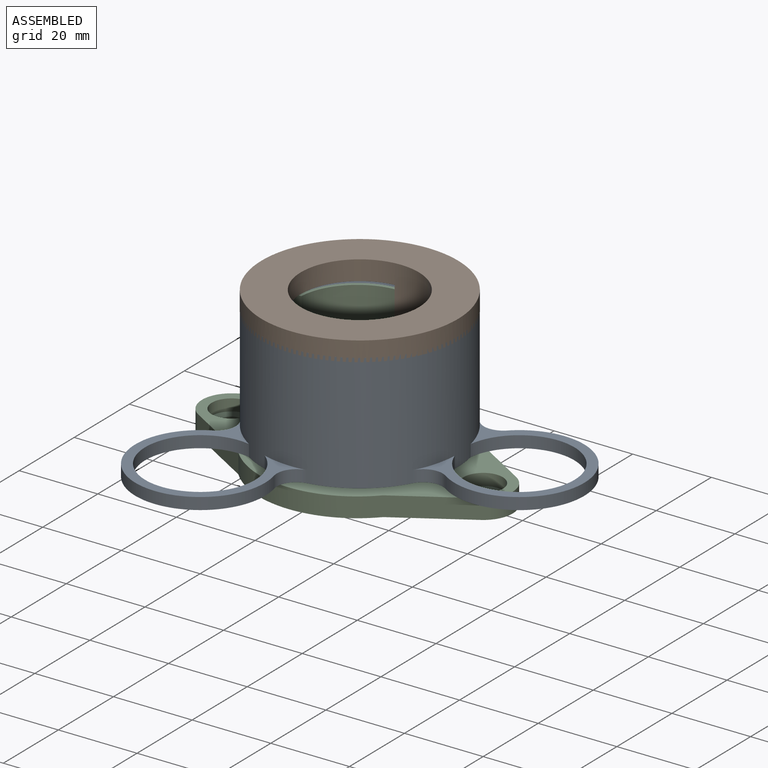
[diagram: assembled view]
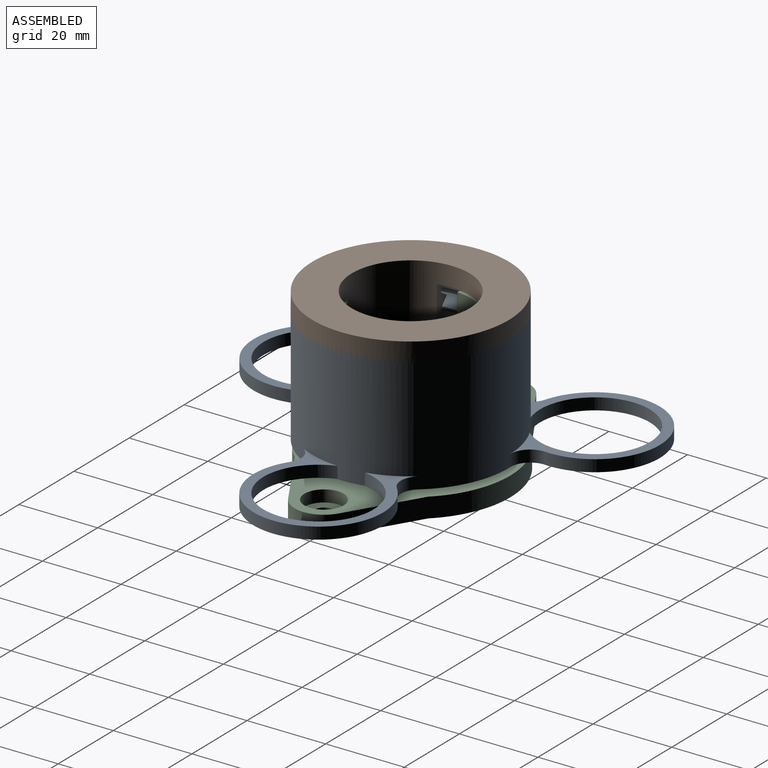
[diagram: assembled view, second angle]
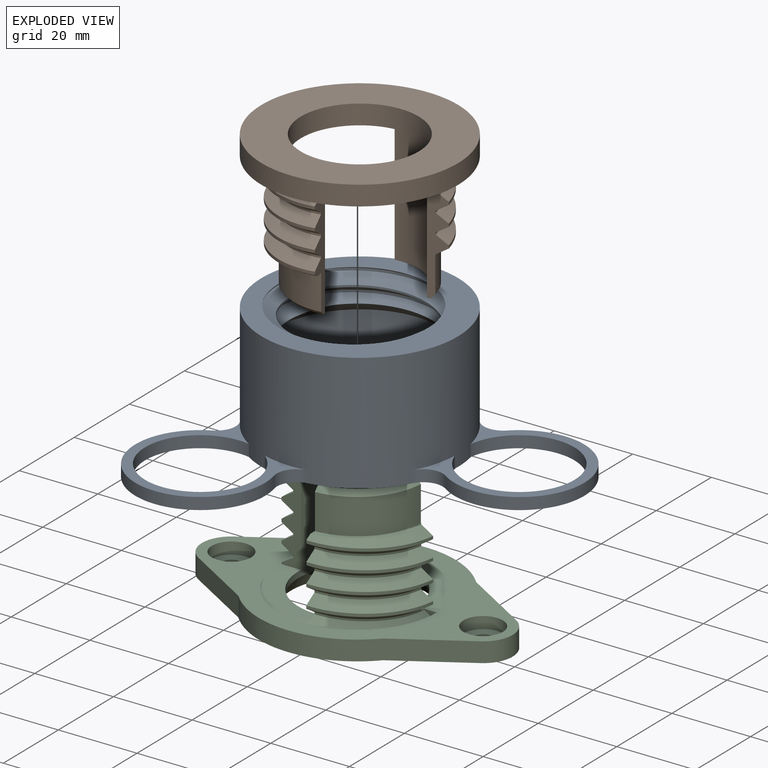
[diagram: exploded view]
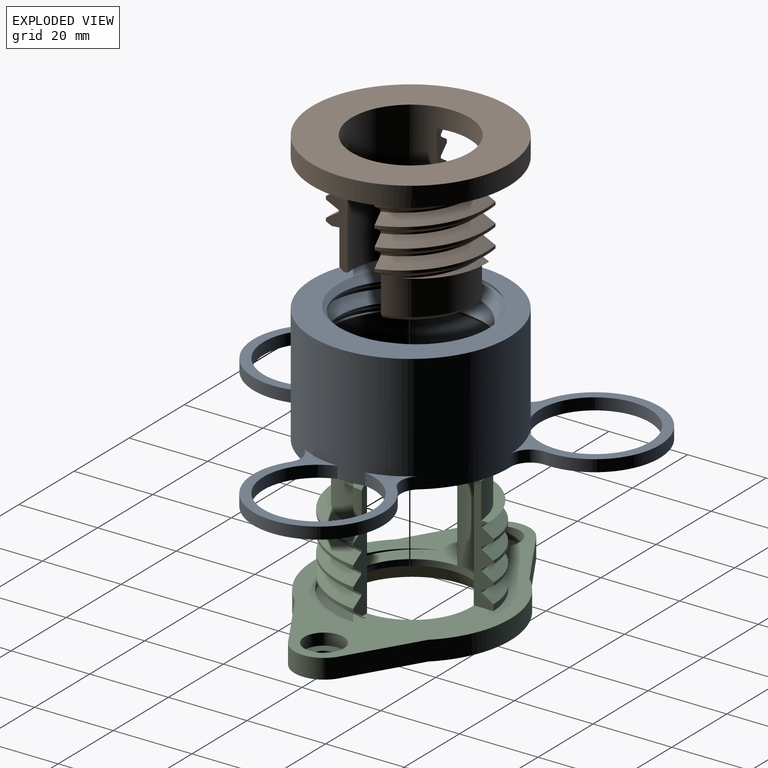
[diagram: exploded view, second angle]
FCSTD DOCUMENT  (FreeCAD 2020.11.29R23076 +2859 (Git))
Label: regulacja-nogi
License: All rights reserved
LicenseURL: http://en.wikipedia.org/wiki/All_rights_reserved
objects: App::FeaturePython×13, Part::FeaturePython×11, App::Link×3
note: 10 computed .brp shape members not serialized (recipe doc carries the construction recipe); baked Part::Feature solids carry a one-line shape summary decoded from their .brp
EXTERNAL_REF file=nakretka-rzymska.FCStd obj=Body
EXTERNAL_REF file=noga-gora.FCStd obj=Body
EXTERNAL_REF file=noga-dol.FCStd obj=Body

FEATURE [App::Link] Link  label="nakretka-rzymska"
  LinkPlacement = pos=(0.604474,0.0526819,2) rot=(0,0,1;0.086943rad)
  LinkedObject = -> <external nakretka-rzymska.FCStd>#Body
  Placement = pos=(0.604474,0.0526819,2) rot=(0,0,1;0.086943rad)
  SyncGroupVisibility = false
  _LinkVersion = 1
FEATURE [App::Link] Link001  label="noga-gora"
  LinkPlacement = pos=(0.604474,0.0526819,21) rot=(0,0,1;0.173886rad)
  LinkedObject = -> <external noga-gora.FCStd>#Body
  Placement = pos=(0.604474,0.0526819,21) rot=(0,0,1;0.173886rad)
  SyncGroupVisibility = false
  _LinkVersion = 1
FEATURE [App::Link] Link002  label="noga-dol"
  LinkPlacement = pos=(0,-5.76185e-06,-20) rot=(-1,0,0;3.14159rad)
  LinkedObject = -> <external noga-dol.FCStd>#Body
  Placement = pos=(0,-5.76185e-06,-20) rot=(-1,0,0;3.14159rad)
  SyncGroupVisibility = false
  _LinkVersion = 1
FEATURE [Part::FeaturePython] Parts  # WARN: FeaturePython — macro-defined, semantics opaque (R4)
  Group = -> [Link,Link001,Link002]
  GroupMode = 0
  _LinkVersion = 1
FEATURE [Part::FeaturePython] Assembly  label="regulacja-nogi"  # WARN: FeaturePython — macro-defined, semantics opaque (R4)
  AutoRelax = true
  BuildShape = 0
  Freeze = false
  Group = -> [Constraints,Elements,Parts]
  Verbose = false
  _LinkVersion = 1
  _SolverType = 1
  _Version = 1
FEATURE [App::FeaturePython] Constraints  # WARN: FeaturePython — macro-defined, semantics opaque (R4)
  Group = -> [Constraint,Constraint001,Constraint002,Constraint003]
  _LinkVersion = 1
  _Version = 1
FEATURE [App::FeaturePython] Elements  # WARN: FeaturePython — macro-defined, semantics opaque (R4)
  Group = -> [_Element,_Element001,_Element002,_Element003,_Element004,_Element005,Element,Element001,Element002]
  _LinkVersion = 1
FEATURE [App::FeaturePython] Constraint  label="Locked"  # WARN: FeaturePython — macro-defined, semantics opaque (R4)
  Disabled = false
  Group = -> [ElementLink]
  _ConstraintType = 0
  _LinkVersion = 0
  _Parent = -> Constraints
FEATURE [App::FeaturePython] ElementLink  label="_Element"  # link proxy (typed FeaturePython)
  LinkTransform = true
  LinkedObject = -> _Element
  _LinkVersion = 0
  _Parent = -> Constraint
FEATURE [Part::FeaturePython] _Element  # link proxy (typed FeaturePython)
  Detach = false
  LinkTransform = true
  LinkedObject = -> Link002 [Chamfer002.Face61]
  _LinkVersion = 0
  _Parent = -> Elements
FEATURE [App::FeaturePython] Constraint001  label="PlaneCoincident"  # WARN: FeaturePython — macro-defined, semantics opaque (R4)
  Angle = 0
  AnglePitch = 0
  AngleRoll = 0
  Cascade = false
  Disabled = false
  Group = -> [ElementLink001,ElementLink002]
  LockAngle = false
  Multiply = false
  Offset = -7
  OffsetX = 0
  OffsetY = 0
  _ConstraintType = 35
  _LinkVersion = 0
  _Parent = -> Constraints
FEATURE [App::FeaturePython] ElementLink001  label="_Element"  # link proxy (typed FeaturePython)
  LinkTransform = true
  LinkedObject = -> _Element
  _LinkVersion = 0
  _Parent = -> Constraint001
FEATURE [App::FeaturePython] ElementLink002  label="_Element001"  # link proxy (typed FeaturePython)
  LinkTransform = true
  LinkedObject = -> _Element001
  _LinkVersion = 0
  _Parent = -> Constraint001
FEATURE [Part::FeaturePython] _Element001  # link proxy (typed FeaturePython)
  Detach = false
  LinkTransform = true
  LinkedObject = -> Link [Fillet.Face2]
  _LinkVersion = 0
  _Parent = -> Elements
FEATURE [App::FeaturePython] Constraint002  label="PlaneCoincident001"  # WARN: FeaturePython — macro-defined, semantics opaque (R4)
  Angle = 0
  AnglePitch = 0
  AngleRoll = 0
  Cascade = false
  Disabled = false
  Group = -> [ElementLink003,ElementLink004]
  LockAngle = false
  Multiply = false
  Offset = 4
  OffsetX = 0
  OffsetY = 0
  _ConstraintType = 35
  _LinkVersion = 0
  _Parent = -> Constraints
FEATURE [App::FeaturePython] ElementLink003  label="_Element002"  # link proxy (typed FeaturePython)
  LinkTransform = true
  LinkedObject = -> _Element002
  _LinkVersion = 0
  _Parent = -> Constraint002
FEATURE [Part::FeaturePython] _Element002  # link proxy (typed FeaturePython)
  Detach = false
  LinkTransform = true
  LinkedObject = -> Link001 [Chamfer001.Face25]
  _LinkVersion = 0
  _Parent = -> Elements
FEATURE [App::FeaturePython] ElementLink004  label="_Element003"  # link proxy (typed FeaturePython)
  LinkTransform = true
  LinkedObject = -> _Element003
  _LinkVersion = 0
  _Parent = -> Constraint002
FEATURE [Part::FeaturePython] _Element003  # link proxy (typed FeaturePython)
  Detach = false
  LinkTransform = true
  LinkedObject = -> Link [Fillet.Face12]
  _LinkVersion = 0
  _Parent = -> Elements
FEATURE [App::FeaturePython] Constraint003  label="PointOnLine"  # WARN: FeaturePython — macro-defined, semantics opaque (R4)
  Disabled = false
  Group = -> [ElementLink005,ElementLink006]
  _ConstraintType = 4
  _LinkVersion = 0
  _Parent = -> Constraints
FEATURE [App::FeaturePython] ElementLink005  label="_Element004"  # link proxy (typed FeaturePython)
  LinkTransform = true
  LinkedObject = -> _Element004
  _LinkVersion = 0
  _Parent = -> Constraint003
FEATURE [Part::FeaturePython] _Element004  # link proxy (typed FeaturePython)
  Detach = false
  LinkTransform = true
  LinkedObject = -> Link001 [Chamfer001.Vertex29]
  _LinkVersion = 0
  _Parent = -> Elements
FEATURE [App::FeaturePython] ElementLink006  label="_Element005"  # link proxy (typed FeaturePython)
  LinkTransform = true
  LinkedObject = -> _Element005
  _LinkVersion = 0
  _Parent = -> Constraint003
FEATURE [Part::FeaturePython] _Element005  # link proxy (typed FeaturePython)
  Detach = false
  LinkTransform = true
  LinkedObject = -> Link002 [Chamfer002.Edge3]
  _LinkVersion = 0
  _Parent = -> Elements
FEATURE [Part::FeaturePython] Element  # link proxy (typed FeaturePython)
  Detach = false
  LinkTransform = true
  LinkedObject = -> Link002 [Chamfer002.Edge82]
  _LinkVersion = 0
  _Parent = -> Elements
FEATURE [Part::FeaturePython] Element001  # link proxy (typed FeaturePython)
  Detach = false
  LinkTransform = true
  LinkedObject = -> Link002 [Chamfer002.Vertex143]
  _LinkVersion = 0
  _Parent = -> Elements
FEATURE [Part::FeaturePython] Element002  # link proxy (typed FeaturePython)
  Detach = false
  LinkTransform = true
  LinkedObject = -> Link002 [Chamfer002.Face35]
  _LinkVersion = 0
  _Parent = -> Elements

RESOLVED EXTERNAL PARTS (link-assembly join: the EXTERNAL_REF files above that resolve inside this repo's crawl, each included once):
---- part nakretka-rzymska.FCStd = doc fcstd_4910834bdb62 ----
FCSTD DOCUMENT  (FreeCAD 2020.11.29R23076 +2859 (Git))
Label: nakretka-rzymska
License: All rights reserved
LicenseURL: http://en.wikipedia.org/wiki/All_rights_reserved
objects: Sketcher::SketchObject×4, PartDesign::Pad×2, Part::Helix×1, PartDesign::ShapeBinder×1, PartDesign::AdditivePipe×1, PartDesign::Mirrored×1, PartDesign::Groove×1, PartDesign::PolarPattern×1, PartDesign::Fillet×1, PartDesign::Body×1
note: 26 computed .brp shape members not serialized (recipe doc carries the construction recipe); baked Part::Feature solids carry a one-line shape summary decoded from their .brp

FEATURE [Sketcher::SketchObject] Sketch
  MapMode = 5
  Support = -> [XY_Plane]
  sketch-geometry (2):
    g0: Circle CenterX=0 CenterY=0 CenterZ=0 NormalX=0 NormalY=0 NormalZ=1 AngleXU=0 Radius=20.5
    g1: Circle CenterX=0 CenterY=0 CenterZ=0 NormalX=0 NormalY=0 NormalZ=1 AngleXU=0 Radius=25
  constraints (4):
    c: Coincident(g0,g-1)
    c: Diameter(g0) = 41
    c: Coincident(g1,g0)
    c: Diameter(g1) = 50
FEATURE [PartDesign::Pad] Pad
  ClaimChildren = false
  Direction = (1,1,1)
  Fit = 0
  FitJoin = 0
  InnerFit = 0
  InnerFitJoin = 0
  InnerTaperAngle = 0
  InnerTaperAngleRev = 0
  Length = 30
  Length2 = 100
  Midplane = true
  NewSolid = false
  Profile = -> Sketch
  Suppress = false
  Type = 0
FEATURE [Sketcher::SketchObject] Sketch001
  MapMode = 5
  Placement = pos=(0,0,0) rot=(1,0,0;1.5708rad)
  Support = -> [XZ_Plane]
  sketch-geometry (4):
    g0: LineSegment StartX=20.6 StartY=2.25 StartZ=0 EndX=20.6 EndY=-2.25 EndZ=0
    g1: LineSegment StartX=20.6 StartY=-2.25 StartZ=0 EndX=17.5 EndY=-0.25 EndZ=0
    g2: LineSegment StartX=17.5 StartY=-0.25 StartZ=0 EndX=17.5 EndY=0.25 EndZ=0
    g3: LineSegment StartX=17.5 StartY=0.25 StartZ=0 EndX=20.6 EndY=2.25 EndZ=0
  constraints (12):
    c: Vertical(g0)
    c: Coincident(g0,g1)
    c: Coincident(g1,g2)
    c: Coincident(g2,g3)
    c: Coincident(g3,g0)
    c: Vertical(g2)
    c: DistanceY(g2,g2) = 0.5
    c: DistanceY(g0,g0) = 4.5
    c: Equal(g1,g3)
    c: DistanceY(g-1,g2) = 0.25
    c: DistanceX(g0) = 20.6
    c: DistanceX(g1) = 17.5
FEATURE [Part::Helix] Helix  label="Helisa"
  Angle = 0
  AttacherType = Attacher::AttachEngine3D
  Height = 20
  LocalCoord = 0
  Pitch = 5
  Radius = 20.6
  Style = 1
FEATURE [PartDesign::ShapeBinder] ReferenceHelix
  Support = -> [Helix]
  TraceSupport = false
FEATURE [PartDesign::AdditivePipe] AdditivePipe
  AuxilleryCurvelinear = true
  AuxillerySpineTangent = false
  BaseFeature = -> Pad
  Binormal = (0,0,0)
  ClaimChildren = false
  Fit = 0
  FitJoin = 0
  InnerFit = 0
  InnerFitJoin = 0
  Mode = 2
  NewSolid = false
  Profile = -> Sketch001
  Spine = -> ReferenceHelix
  SpineTangent = false
  Suppress = false
  Transformation = 0
  Transition = 0
FEATURE [PartDesign::Mirrored] Mirrored
  BaseFeature = -> AdditivePipe
  CopyShape = false
  MirrorPlane = -> XY_Plane
  NewSolid = false
  OriginalSubs = -> [AdditivePipe]
  Originals = -> [AdditivePipe]
  SubTransform = true
  Suppress = false
FEATURE [Sketcher::SketchObject] Sketch002
  MapMode = 5
  Placement = pos=(0,0,0) rot=(0.57735,0.57735,0.57735;2.0944rad)
  Support = -> [YZ_Plane]
  sketch-geometry (14):
    g0: LineSegment StartX=0 StartY=15 StartZ=0 EndX=30 EndY=15 EndZ=0
    g1: LineSegment StartX=30 StartY=15 StartZ=0 EndX=30 EndY=25 EndZ=0
    g2: LineSegment StartX=30 StartY=25 StartZ=0 EndX=0 EndY=25 EndZ=0
    g3: LineSegment StartX=0 StartY=25 StartZ=0 EndX=0 EndY=15 EndZ=0
    g4: LineSegment StartX=0 StartY=-15 StartZ=0 EndX=30 EndY=-15 EndZ=0
    g5: LineSegment StartX=30 StartY=-15 StartZ=0 EndX=30 EndY=-25 EndZ=0
    g6: LineSegment StartX=30 StartY=-25 StartZ=0 EndX=0 EndY=-25 EndZ=0
    g7: LineSegment StartX=0 StartY=-25 StartZ=0 EndX=0 EndY=-15 EndZ=0
    g8: LineSegment StartX=0 StartY=7.5 StartZ=0 EndX=18 EndY=7.5 EndZ=0
    g9: LineSegment StartX=20.6 StartY=4.9 StartZ=0 EndX=20.6 EndY=-4.9 EndZ=0
    g10: LineSegment StartX=18 StartY=-7.5 StartZ=0 EndX=0 EndY=-7.5 EndZ=0
    g11: LineSegment StartX=0 StartY=-7.5 StartZ=0 EndX=0 EndY=7.5 EndZ=0
    g12: LineSegment StartX=18 StartY=7.5 StartZ=0 EndX=20.6 EndY=4.9 EndZ=0
    g13: LineSegment StartX=20.6 StartY=-4.9 StartZ=0 EndX=18 EndY=-7.5 EndZ=0
  constraints (40):
    c: Coincident(g0,g1)
    c: Coincident(g1,g2)
    c: Coincident(g2,g3)
    c: Coincident(g3,g0)
    c: Horizontal(g0)
    c: Horizontal(g2)
    c: Vertical(g1)
    c: Vertical(g3)
    c: PointOnObject(g0,g-2)
    c: Coincident(g4,g5)
    c: Coincident(g5,g6)
    c: Coincident(g6,g7)
    c: Coincident(g7,g4)
    c: Horizontal(g4)
    c: Horizontal(g6)
    c: Vertical(g5)
    c: Vertical(g7)
    c: Coincident(g10,g11)
    c: Coincident(g11,g8)
    c: Horizontal(g8)
    c: Horizontal(g10)
    c: Vertical(g9)
    c: PointOnObject(g8,g-2)
    c: Symmetric(g10,g8,g-1)
    c: Symmetric(g0,g4,g-1)
    c: Equal(g0,g4)
    c: Equal(g1,g5)
    c: DistanceX(g2,g2) = 30
    c: DistanceY(g1,g1) = 10
    c: DistanceY(g4) = -15
    c: Coincident(g10,g13)
    c: Coincident(g9,g13)
    c: Coincident(g9,g12)
    c: Coincident(g8,g12)
    c: Angle(g8,g12) = 2.35619
    c: Angle(g13,g10) = 2.35619
    c: DistanceX(g9) = 20.6
    c: DistanceX(g10) = 18
    c: DistanceY(g11,g11) = 15
    c: Equal(g12,g13)
FEATURE [PartDesign::Groove] Groove
  Angle = 360
  Axis = (-2e-16,3e-16,1)
  Base = (0,0,0)
  BaseFeature = -> Mirrored
  ClaimChildren = false
  Fit = 0
  FitJoin = 0
  InnerFit = 0
  InnerFitJoin = 0
  NewSolid = false
  Profile = -> Sketch002
  ReferenceAxis = -> Sketch002 [V_Axis]
  Suppress = false
FEATURE [Sketcher::SketchObject] Sketch003
  MapMode = 5
  Placement = pos=(0,0,-15) rot=(1,0,0;3.14159rad)
  Support = -> [Groove]
  sketch-geometry (2):
    g0: Circle CenterX=38.3826 CenterY=0 CenterZ=0 NormalX=0 NormalY=0 NormalZ=1 AngleXU=0 Radius=16.5
    g1: Circle CenterX=38.3826 CenterY=0 CenterZ=0 NormalX=0 NormalY=0 NormalZ=1 AngleXU=0 Radius=14
  constraints (4):
    c: PointOnObject(g0,g-1)
    c: Coincident(g1,g0)
    c: Diameter(g0) = 33
    c: Diameter(g1) = 28
FEATURE [PartDesign::Pad] Pad001
  BaseFeature = -> Groove
  ClaimChildren = false
  Direction = (1,1,1)
  Fit = 0
  FitJoin = 0
  InnerFit = 0
  InnerFitJoin = 0
  InnerTaperAngle = 0
  InnerTaperAngleRev = 0
  Length = 3
  Length2 = 100
  NewSolid = false
  Profile = -> Sketch003
  Reversed = true
  Suppress = false
  Type = 0
FEATURE [PartDesign::PolarPattern] PolarPattern
  Angle = 360
  Axis = -> Sketch003 [N_Axis]
  BaseFeature = -> Pad001
  CopyShape = false
  NewSolid = false
  Occurrences = 3
  OriginalSubs = -> [Pad001]
  Originals = -> [Pad001]
  SubTransform = true
  Suppress = false
FEATURE [PartDesign::Fillet] Fillet
  Base = -> PolarPattern [Edge8,Edge6,Edge24,Edge22,Edge16,Edge14]
  BaseFeature = -> PolarPattern
  NewSolid = false
  Radius = 5
  SupportTransform = false
  Suppress = false
FEATURE [PartDesign::Body] Body  label="nakretka-rzymska"
  ExportMode = 0
  Group = -> [Sketch,Pad,Sketch001,AdditivePipe,ReferenceHelix,Mirrored,Sketch002,Groove,Pad001,Sketch003,PolarPattern,Fillet]
  Origin = -> Origin
  Tip = -> Fillet
  _ExportChildren = -> [Pad,AdditivePipe,Mirrored,Groove,Pad001,PolarPattern,Fillet]
  _GroupVersion = 1
---- part noga-dol.FCStd = doc fcstd_853fdf3a676e ----
FCSTD DOCUMENT  (FreeCAD 2020.11.29R23076 +2859 (Git))
Label: noga-dol
License: All rights reserved
LicenseURL: http://en.wikipedia.org/wiki/All_rights_reserved
objects: Sketcher::SketchObject×6, PartDesign::Chamfer×3, PartDesign::Pocket×3, PartDesign::Revolution×1, Part::Helix×1, PartDesign::ShapeBinder×1, PartDesign::SubtractivePipe×1, PartDesign::PolarPattern×1, PartDesign::Pad×1, PartDesign::Body×1
note: 38 computed .brp shape members not serialized (recipe doc carries the construction recipe); baked Part::Feature solids carry a one-line shape summary decoded from their .brp

FEATURE [Sketcher::SketchObject] Sketch
  MapMode = 5
  Placement = pos=(0,0,0) rot=(1,0,0;1.5708rad)
  Support = -> [XZ_Plane]
  sketch-geometry (6):
    g0: LineSegment StartX=15 StartY=0 StartZ=0 EndX=25 EndY=0 EndZ=0
    g1: LineSegment StartX=25 StartY=0 StartZ=0 EndX=25 EndY=-5 EndZ=0
    g2: LineSegment StartX=25 StartY=-5 StartZ=0 EndX=20 EndY=-5 EndZ=0
    g3: LineSegment StartX=20 StartY=-5 StartZ=0 EndX=20 EndY=-35 EndZ=0
    g4: LineSegment StartX=20 StartY=-35 StartZ=0 EndX=15 EndY=-35 EndZ=0
    g5: LineSegment StartX=15 StartY=-35 StartZ=0 EndX=15 EndY=0 EndZ=0
  constraints (18):
    c: Horizontal(g0)
    c: Coincident(g0,g1)
    c: Coincident(g1,g2)
    c: Coincident(g2,g3)
    c: Vertical(g3)
    c: Coincident(g3,g4)
    c: Horizontal(g4)
    c: Coincident(g4,g5)
    c: Vertical(g5)
    c: Coincident(g0,g5)
    c: DistanceX(g0) = 15
    c: DistanceX(g0) = 25
    c: Vertical(g1)
    c: DistanceX(g2) = 20
    c: Horizontal(g2)
    c: DistanceY(g2) = -5
    c: DistanceY(g4) = -35
    c: PointOnObject(g0,g-1)
FEATURE [PartDesign::Revolution] Revolution
  Angle = 360
  Axis = (0,-2e-16,1)
  Base = (0,0,0)
  ClaimChildren = false
  Fit = 0
  FitJoin = 0
  InnerFit = 0
  InnerFitJoin = 0
  NewSolid = false
  Placement = pos=(0,0,0) rot=(1,0,0;1.5708rad)
  Profile = -> Sketch
  ReferenceAxis = -> Sketch [V_Axis]
  Reversed = true
  Suppress = false
FEATURE [Part::Helix] Helix  label="Helisa"
  Angle = 0
  AttacherType = Attacher::AttachEngine3D
  Height = 35
  LocalCoord = 1
  Pitch = 5
  Placement = pos=(0,0,-40) rot=(0,0,1;0rad)
  Radius = 20
  Style = 1
FEATURE [Sketcher::SketchObject] Sketch001
  MapMode = 5
  Placement = pos=(0,0,0) rot=(1,0,0;1.5708rad)
  Support = -> [XZ_Plane]
  sketch-geometry (5):
    g0: LineSegment StartX=20.2 StartY=-22.75 StartZ=0 EndX=17 EndY=-24.75 EndZ=0
    g1: LineSegment StartX=17 StartY=-25.25 StartZ=0 EndX=20.2 EndY=-27.25 EndZ=0
    g2: LineSegment StartX=20.2 StartY=-27.25 StartZ=0 EndX=20.2 EndY=-22.75 EndZ=0
    g3: LineSegment StartX=17 StartY=-24.75 StartZ=0 EndX=17 EndY=-25.25 EndZ=0
    g4: GeomPoint X=17 Y=-25 Z=0
  constraints (14):
    c: Coincident(g1,g2)
    c: Coincident(g2,g0)
    c: Vertical(g2)
    c: Equal(g0,g1)
    c: DistanceX(g0) = 20.2
    c: DistanceY(g2,g2) = 4.5
    c: Vertical(g3)
    c: Coincident(g0,g3)
    c: Coincident(g1,g3)
    c: DistanceY(g3,g3) = 0.5
    c: PointOnObject(g4,g3)
    c: DistanceY(g4,g0) = 0.25
    c: DistanceX(g4) = 17
    c: DistanceY(g4) = -25
FEATURE [PartDesign::ShapeBinder] ReferenceHelix
  Placement = pos=(0,0,-40) rot=(0,0,1;0rad)
  Support = -> [Helix]
  TraceSupport = false
FEATURE [PartDesign::Chamfer] Chamfer
  Angle = 45
  Base = -> Revolution [Edge6]
  BaseFeature = -> Revolution
  ChamferType = 0
  FlipDirection = false
  NewSolid = false
  Placement = pos=(0,0,0) rot=(1,0,0;1.5708rad)
  Size = 2
  Size2 = 1
  SupportTransform = false
  Suppress = false
FEATURE [PartDesign::SubtractivePipe] SubtractivePipe
  AuxilleryCurvelinear = true
  AuxillerySpineTangent = false
  BaseFeature = -> Chamfer
  Binormal = (0,0,0)
  ClaimChildren = false
  Fit = 0
  FitJoin = 0
  InnerFit = 0
  InnerFitJoin = 0
  Mode = 2
  NewSolid = false
  Placement = pos=(0,0,0) rot=(1,0,0;1.5708rad)
  Profile = -> Sketch001
  Spine = -> ReferenceHelix
  SpineTangent = false
  Suppress = false
  Transformation = 0
  Transition = 0
FEATURE [Sketcher::SketchObject] Sketch002
  MapMode = 5
  Placement = pos=(0,0,-35) rot=(1,0,0;3.14159rad)
  Support = -> [SubtractivePipe]
  sketch-geometry (4):
    g0: LineSegment StartX=-1 StartY=-1 StartZ=0 EndX=29 EndY=-1 EndZ=0
    g1: LineSegment StartX=29 StartY=-1 StartZ=0 EndX=29 EndY=29 EndZ=0
    g2: LineSegment StartX=29 StartY=29 StartZ=0 EndX=-1 EndY=29 EndZ=0
    g3: LineSegment StartX=-1 StartY=29 StartZ=0 EndX=-1 EndY=-1 EndZ=0
  constraints (12):
    c: Coincident(g0,g1)
    c: Coincident(g1,g2)
    c: Coincident(g2,g3)
    c: Coincident(g3,g0)
    c: Horizontal(g0)
    c: Horizontal(g2)
    c: Vertical(g1)
    c: Vertical(g3)
    c: DistanceX(g0) = -1
    c: DistanceY(g0) = -1
    c: DistanceX(g0,g0) = 30
    c: DistanceY(g1,g1) = 30
FEATURE [PartDesign::Pocket] Pocket
  BaseFeature = -> SubtractivePipe
  ClaimChildren = false
  Fit = 0
  FitJoin = 0
  InnerFit = 0
  InnerFitJoin = 0
  InnerTaperAngle = 0
  InnerTaperAngleRev = 0
  Length = 30
  Length2 = 100
  NewSolid = false
  Placement = pos=(0,0,0) rot=(1,0,0;1.5708rad)
  Profile = -> Sketch002
  Suppress = false
  Type = 0
FEATURE [PartDesign::PolarPattern] PolarPattern
  Angle = 360
  Axis = -> Z_Axis
  BaseFeature = -> Pocket
  CopyShape = false
  NewSolid = false
  Occurrences = 2
  Placement = pos=(0,0,0) rot=(1,0,0;1.5708rad)
  SubTransform = true
  Suppress = false
FEATURE [Sketcher::SketchObject] Sketch003
  MapMode = 5
  Placement = pos=(0,0,0) rot=(0,0,1;3.14159rad)
  Support = -> [PolarPattern]
  sketch-geometry (11):
    g0: ArcOfCircle CenterX=0 CenterY=0 CenterZ=0 NormalX=0 NormalY=0 NormalZ=1 AngleXU=0 Radius=24 StartAngle=1.02906 EndAngle=2.11253
    g1: ArcOfCircle CenterX=-32 CenterY=0 CenterZ=0 NormalX=0 NormalY=0 NormalZ=1 AngleXU=0 Radius=7.5 StartAngle=2.11253 EndAngle=4.17065
    g2: Circle CenterX=-32 CenterY=0 CenterZ=0 NormalX=0 NormalY=0 NormalZ=1 AngleXU=0 Radius=2.5
    g3: Circle CenterX=32 CenterY=0 CenterZ=0 NormalX=0 NormalY=0 NormalZ=1 AngleXU=0 Radius=2.5
    g4: LineSegment StartX=-35.8672 StartY=6.42612 StartZ=0 EndX=-12.375 EndY=20.5636 EndZ=0
    g5: LineSegment StartX=-35.8672 StartY=-6.42612 StartZ=0 EndX=-12.375 EndY=-20.5636 EndZ=0
    g6: LineSegment StartX=35.8672 StartY=6.42611 StartZ=0 EndX=12.375 EndY=20.5636 EndZ=0
    g7: LineSegment StartX=35.8672 StartY=-6.42611 StartZ=0 EndX=12.375 EndY=-20.5636 EndZ=0
    g8: ArcOfCircle CenterX=0 CenterY=0 CenterZ=0 NormalX=0 NormalY=0 NormalZ=1 AngleXU=0 Radius=24 StartAngle=4.17065 EndAngle=5.25412
    g9: ArcOfCircle CenterX=32 CenterY=0 CenterZ=0 NormalX=0 NormalY=0 NormalZ=1 AngleXU=0 Radius=7.5 StartAngle=5.25413 EndAngle=7.31224
    g10: Circle CenterX=0 CenterY=0 CenterZ=0 NormalX=0 NormalY=0 NormalZ=1 AngleXU=0 Radius=21
  constraints (29):
    c: Coincident(g0,g-1)
    c: Diameter(g0) = 48
    c: PointOnObject(g1,g-1)
    c: Coincident(g2,g1)
    c: Symmetric(g1,g3,g-2)
    c: DistanceX(g1) = -32
    c: Diameter(g3) = 5
    c: Tangent(g4,g0)
    c: Tangent(g7,g0)
    c: Tangent(g0,g5)
    c: Tangent(g6,g0)
    c: Tangent(g1,g4)
    c: Tangent(g5,g1)
    c: Equal(g3,g2)
    c: Coincident(g0,g6)
    c: Coincident(g8,g7)
    c: Coincident(g8,g5)
    c: Coincident(g0,g8)
    c: Coincident(g0,g4)
    c: Coincident(g1,g4)
    c: Coincident(g1,g5)
    c: Coincident(g9,g3)
    c: Tangent(g9,g7) = 1.5708
    c: Tangent(g9,g6) = -1.5708
    c: Radius(g9) = 7.5
    c: Equal(g1,g9)
    c: Equal(g8,g0)
    c: Coincident(g10,g0)
    c: Diameter(g10) = 42
FEATURE [PartDesign::Pad] Pad
  BaseFeature = -> PolarPattern
  ClaimChildren = false
  Direction = (1,1,1)
  Fit = 0
  FitJoin = 0
  InnerFit = 0
  InnerFitJoin = 0
  InnerTaperAngle = 0
  InnerTaperAngleRev = 0
  Length = 5
  Length2 = 100
  NewSolid = false
  Placement = pos=(0,0,0) rot=(1,0,0;1.5708rad)
  Profile = -> Sketch003
  Reversed = true
  Suppress = false
  Type = 0
FEATURE [PartDesign::Chamfer] Chamfer001
  Angle = 60
  Base = -> Pad [Edge67]
  BaseFeature = -> Pad
  ChamferType = 2
  FlipDirection = true
  NewSolid = false
  Placement = pos=(0,0,0) rot=(1,0,0;1.5708rad)
  Size = 2
  Size2 = 1
  SupportTransform = false
  Suppress = false
FEATURE [Sketcher::SketchObject] Sketch004
  MapMode = 5
  Placement = pos=(0,0,-5) rot=(1,0,0;3.14159rad)
  Support = -> [Chamfer001]
  sketch-geometry (2):
    g0: Circle CenterX=-32 CenterY=0 CenterZ=0 NormalX=0 NormalY=0 NormalZ=1 AngleXU=0 Radius=5
    g1: Circle CenterX=32 CenterY=0 CenterZ=0 NormalX=0 NormalY=0 NormalZ=1 AngleXU=0 Radius=5
  constraints (6):
    c: PointOnObject(g0,g-1)
    c: PointOnObject(g1,g-1)
    c: DistanceX(g1) = 32
    c: DistanceX(g0) = -32
    c: Diameter(g0) = 10
    c: Equal(g1,g0)
FEATURE [PartDesign::Pocket] Pocket001
  BaseFeature = -> Chamfer001
  ClaimChildren = false
  Fit = 0
  FitJoin = 0
  InnerFit = 0
  InnerFitJoin = 0
  InnerTaperAngle = 0
  InnerTaperAngleRev = 0
  Length = 3
  Length2 = 100
  NewSolid = false
  Placement = pos=(0,0,0) rot=(1,0,0;1.5708rad)
  Profile = -> Sketch004
  Suppress = false
  Type = 0
FEATURE [Sketcher::SketchObject] Sketch005
  MapMode = 5
  Placement = pos=(0,0,-35) rot=(1,0,0;3.14159rad)
  Support = -> [Pocket001]
  sketch-geometry (2):
    g0: Circle CenterX=0 CenterY=0 CenterZ=0 NormalX=0 NormalY=0 NormalZ=1 AngleXU=0 Radius=16.9
    g1: Circle CenterX=0 CenterY=0 CenterZ=0 NormalX=0 NormalY=0 NormalZ=1 AngleXU=0 Radius=25
  constraints (4):
    c: Coincident(g0,g-1)
    c: Coincident(g1,g0)
    c: Diameter(g0) = 33.8
    c: Diameter(g1) = 50
FEATURE [PartDesign::Pocket] Pocket002
  BaseFeature = -> Pocket001
  ClaimChildren = false
  Fit = 0
  FitJoin = 0
  InnerFit = 0
  InnerFitJoin = 0
  InnerTaperAngle = 0
  InnerTaperAngleRev = 0
  Length = 10
  Length2 = 100
  NewSolid = false
  Placement = pos=(0,0,0) rot=(1,0,0;1.5708rad)
  Profile = -> Sketch005
  Suppress = false
  Type = 0
FEATURE [PartDesign::Chamfer] Chamfer002
  Angle = 45
  Base = -> Pocket002 [Edge81,Edge39]
  BaseFeature = -> Pocket002
  ChamferType = 0
  FlipDirection = false
  NewSolid = false
  Placement = pos=(0,0,0) rot=(1,0,0;1.5708rad)
  Size = 1
  Size2 = 1
  SupportTransform = false
  Suppress = false
FEATURE [PartDesign::Body] Body  label="noga-dol"
  ExportMode = 0
  Group = -> [Sketch,Revolution,Sketch001,ReferenceHelix,Chamfer,SubtractivePipe,Sketch002,Pocket,PolarPattern,Sketch003,Pad,Chamfer001,Sketch004,Pocket001,Sketch005,Pocket002,Chamfer002]
  Origin = -> Origin
  Tip = -> Chamfer002
  _ExportChildren = -> [Revolution,Chamfer,SubtractivePipe,Pocket,PolarPattern,Pad,Chamfer001,Pocket001,Pocket002,Chamfer002]
  _GroupVersion = 1
---- part noga-gora.FCStd = doc fcstd_73b4e672f193 ----
FCSTD DOCUMENT  (FreeCAD 2020.11.29R23076 +2859 (Git))
Label: noga-gora
License: All rights reserved
LicenseURL: http://en.wikipedia.org/wiki/All_rights_reserved
objects: Sketcher::SketchObject×4, PartDesign::Chamfer×2, PartDesign::Pocket×2, PartDesign::Revolution×1, Part::Helix×1, PartDesign::ShapeBinder×1, PartDesign::SubtractivePipe×1, PartDesign::PolarPattern×1, PartDesign::Body×1
note: 27 computed .brp shape members not serialized (recipe doc carries the construction recipe); baked Part::Feature solids carry a one-line shape summary decoded from their .brp

FEATURE [Sketcher::SketchObject] Sketch
  MapMode = 5
  Placement = pos=(0,0,0) rot=(1,0,0;1.5708rad)
  Support = -> [XZ_Plane]
  sketch-geometry (6):
    g0: LineSegment StartX=15 StartY=0 StartZ=0 EndX=25 EndY=0 EndZ=0
    g1: LineSegment StartX=25 StartY=0 StartZ=0 EndX=25 EndY=-5 EndZ=0
    g2: LineSegment StartX=25 StartY=-5 StartZ=0 EndX=20 EndY=-5 EndZ=0
    g3: LineSegment StartX=20 StartY=-5 StartZ=0 EndX=20 EndY=-35 EndZ=0
    g4: LineSegment StartX=20 StartY=-35 StartZ=0 EndX=15 EndY=-35 EndZ=0
    g5: LineSegment StartX=15 StartY=-35 StartZ=0 EndX=15 EndY=0 EndZ=0
  constraints (18):
    c: Horizontal(g0)
    c: Coincident(g0,g1)
    c: Coincident(g1,g2)
    c: Coincident(g2,g3)
    c: Vertical(g3)
    c: Coincident(g3,g4)
    c: Horizontal(g4)
    c: Coincident(g4,g5)
    c: Vertical(g5)
    c: Coincident(g0,g5)
    c: DistanceX(g0) = 15
    c: DistanceX(g0) = 25
    c: Vertical(g1)
    c: DistanceX(g2) = 20
    c: Horizontal(g2)
    c: DistanceY(g2) = -5
    c: DistanceY(g4) = -35
    c: PointOnObject(g0,g-1)
FEATURE [PartDesign::Revolution] Revolution
  Angle = 360
  Axis = (0,-2e-16,1)
  Base = (0,0,0)
  ClaimChildren = false
  Fit = 0
  FitJoin = 0
  InnerFit = 0
  InnerFitJoin = 0
  NewSolid = false
  Placement = pos=(0,0,0) rot=(1,0,0;1.5708rad)
  Profile = -> Sketch
  ReferenceAxis = -> Sketch [V_Axis]
  Reversed = true
  Suppress = false
FEATURE [Part::Helix] Helix  label="Helisa"
  Angle = 0
  AttacherType = Attacher::AttachEngine3D
  Height = 33.8
  LocalCoord = 0
  Pitch = 5
  Placement = pos=(0,0,-40) rot=(0,0,1;0rad)
  Radius = 20
  Style = 1
FEATURE [Sketcher::SketchObject] Sketch001
  MapMode = 5
  Placement = pos=(0,0,0) rot=(1,0,0;1.5708rad)
  Support = -> [XZ_Plane]
  sketch-geometry (5):
    g0: LineSegment StartX=20.2 StartY=-22.75 StartZ=0 EndX=17 EndY=-24.75 EndZ=0
    g1: LineSegment StartX=17 StartY=-25.25 StartZ=0 EndX=20.2 EndY=-27.25 EndZ=0
    g2: LineSegment StartX=20.2 StartY=-27.25 StartZ=0 EndX=20.2 EndY=-22.75 EndZ=0
    g3: LineSegment StartX=17 StartY=-24.75 StartZ=0 EndX=17 EndY=-25.25 EndZ=0
    g4: GeomPoint X=17 Y=-25 Z=0
  constraints (14):
    c: Coincident(g1,g2)
    c: Coincident(g2,g0)
    c: Vertical(g2)
    c: Equal(g0,g1)
    c: DistanceX(g0) = 20.2
    c: DistanceY(g2,g2) = 4.5
    c: Vertical(g3)
    c: Coincident(g0,g3)
    c: Coincident(g1,g3)
    c: DistanceY(g3,g3) = 0.5
    c: PointOnObject(g4,g3)
    c: DistanceY(g4,g0) = 0.25
    c: DistanceX(g4) = 17
    c: DistanceY(g4) = -25
FEATURE [PartDesign::ShapeBinder] ReferenceHelix
  Placement = pos=(0,0,-40) rot=(0,0,1;0rad)
  Support = -> [Helix]
  TraceSupport = false
FEATURE [PartDesign::Chamfer] Chamfer
  Angle = 45
  Base = -> Revolution [Edge6]
  BaseFeature = -> Revolution
  ChamferType = 0
  FlipDirection = false
  NewSolid = false
  Placement = pos=(0,0,0) rot=(1,0,0;1.5708rad)
  Size = 2
  Size2 = 1
  SupportTransform = false
  Suppress = false
FEATURE [PartDesign::SubtractivePipe] SubtractivePipe
  AuxilleryCurvelinear = true
  AuxillerySpineTangent = false
  BaseFeature = -> Chamfer
  Binormal = (0,0,0)
  ClaimChildren = false
  Fit = 0
  FitJoin = 0
  InnerFit = 0
  InnerFitJoin = 0
  Mode = 2
  NewSolid = false
  Placement = pos=(0,0,0) rot=(1,0,0;1.5708rad)
  Profile = -> Sketch001
  Spine = -> ReferenceHelix
  SpineTangent = false
  Suppress = false
  Transformation = 0
  Transition = 0
FEATURE [Sketcher::SketchObject] Sketch002
  MapMode = 5
  Placement = pos=(0,0,-35) rot=(1,0,0;3.14159rad)
  Support = -> [SubtractivePipe]
  sketch-geometry (4):
    g0: LineSegment StartX=-1 StartY=-1 StartZ=0 EndX=29 EndY=-1 EndZ=0
    g1: LineSegment StartX=29 StartY=-1 StartZ=0 EndX=29 EndY=29 EndZ=0
    g2: LineSegment StartX=29 StartY=29 StartZ=0 EndX=-1 EndY=29 EndZ=0
    g3: LineSegment StartX=-1 StartY=29 StartZ=0 EndX=-1 EndY=-1 EndZ=0
  constraints (12):
    c: Coincident(g0,g1)
    c: Coincident(g1,g2)
    c: Coincident(g2,g3)
    c: Coincident(g3,g0)
    c: Horizontal(g0)
    c: Horizontal(g2)
    c: Vertical(g1)
    c: Vertical(g3)
    c: DistanceX(g0) = -1
    c: DistanceY(g0) = -1
    c: DistanceX(g0,g0) = 30
    c: DistanceY(g1,g1) = 30
FEATURE [PartDesign::Pocket] Pocket
  BaseFeature = -> SubtractivePipe
  ClaimChildren = false
  Fit = 0
  FitJoin = 0
  InnerFit = 0
  InnerFitJoin = 0
  InnerTaperAngle = 0
  InnerTaperAngleRev = 0
  Length = 30
  Length2 = 100
  NewSolid = false
  Placement = pos=(0,0,0) rot=(1,0,0;1.5708rad)
  Profile = -> Sketch002
  Suppress = false
  Type = 0
FEATURE [PartDesign::PolarPattern] PolarPattern
  Angle = 360
  Axis = -> Z_Axis
  BaseFeature = -> Pocket
  CopyShape = false
  NewSolid = false
  Occurrences = 2
  Placement = pos=(0,0,0) rot=(1,0,0;1.5708rad)
  SubTransform = true
  Suppress = false
FEATURE [Sketcher::SketchObject] Sketch003
  MapMode = 5
  Placement = pos=(0,0,-35) rot=(1,0,0;3.14159rad)
  Support = -> [PolarPattern]
  sketch-geometry (2):
    g0: Circle CenterX=0 CenterY=0 CenterZ=0 NormalX=0 NormalY=0 NormalZ=1 AngleXU=0 Radius=16.9
    g1: Circle CenterX=0 CenterY=0 CenterZ=0 NormalX=0 NormalY=0 NormalZ=1 AngleXU=0 Radius=25
  constraints (4):
    c: Coincident(g0,g-1)
    c: Diameter(g0) = 33.8
    c: Coincident(g1,g0)
    c: Diameter(g1) = 50
FEATURE [PartDesign::Pocket] Pocket001
  BaseFeature = -> PolarPattern
  ClaimChildren = false
  Fit = 0
  FitJoin = 0
  InnerFit = 0
  InnerFitJoin = 0
  InnerTaperAngle = 0
  InnerTaperAngleRev = 0
  Length = 10
  Length2 = 100
  NewSolid = false
  Placement = pos=(0,0,0) rot=(1,0,0;1.5708rad)
  Profile = -> Sketch003
  Suppress = false
  Type = 0
FEATURE [PartDesign::Chamfer] Chamfer001
  Angle = 45
  Base = -> Pocket001 [Edge49,Edge137]
  BaseFeature = -> Pocket001
  ChamferType = 0
  FlipDirection = false
  NewSolid = false
  Placement = pos=(0,0,0) rot=(1,0,0;1.5708rad)
  Size = 1
  Size2 = 1
  SupportTransform = false
  Suppress = false
FEATURE [PartDesign::Body] Body  label="noga-gora"
  ExportMode = 0
  Group = -> [Sketch,Revolution,Sketch001,ReferenceHelix,Chamfer,SubtractivePipe,Sketch002,Pocket,PolarPattern,Sketch003,Pocket001,Chamfer001]
  Origin = -> Origin
  Tip = -> Chamfer001
  _ExportChildren = -> [Revolution,Chamfer,SubtractivePipe,Pocket,PolarPattern,Pocket001,Chamfer001]
  _GroupVersion = 1
